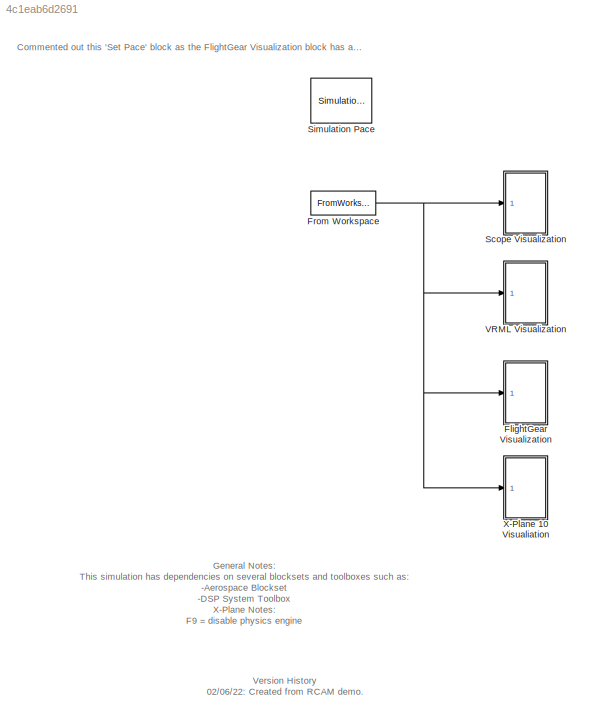
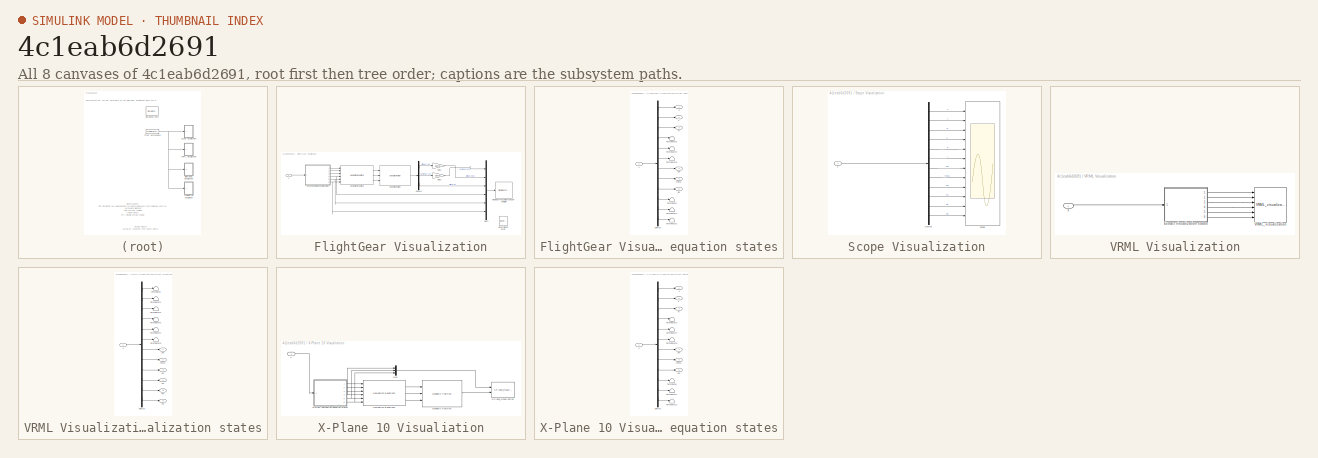
[diagram: thumbnail index - all 8 canvases of the model, root first then tree order]
MODEL slx_4c1eab6d2691
KIND model
CONFIG AbsTol = auto
CONFIG EnableMultiTasking = on
CONFIG FixedStep = auto
CONFIG MaxStep = auto
CONFIG MinStep = auto
CONFIG RelTol = 1e-3
CONFIG SampleTimeConstraint = Unconstrained
CONFIG SolverName = ode45
CONFIG StartTime = 0.0
CONFIG StopTime = simulation.t_final
BLOCK [SubSystem] FlightGear Visualization
  Ports = [1]
  RequestExecContextInheritance = off
BLOCK [Demux] FlightGear Visualization/Demux1
  Outputs = 3
  Ports = [1, 3]
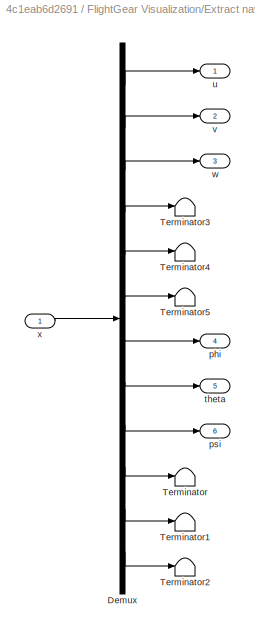
BLOCK [SubSystem] FlightGear Visualization/Extract navigation equation states
  Ports = [1, 6]
  RequestExecContextInheritance = off
BLOCK [Demux] FlightGear Visualization/Extract navigation equation states/Demux
  Outputs = 12
  Ports = [1, 12]
BLOCK [Terminator] FlightGear Visualization/Extract navigation equation states/Terminator
BLOCK [Terminator] FlightGear Visualization/Extract navigation equation states/Terminator1
BLOCK [Terminator] FlightGear Visualization/Extract navigation equation states/Terminator2
BLOCK [Terminator] FlightGear Visualization/Extract navigation equation states/Terminator3
BLOCK [Terminator] FlightGear Visualization/Extract navigation equation states/Terminator4
BLOCK [Terminator] FlightGear Visualization/Extract navigation equation states/Terminator5
BLOCK [Outport] FlightGear Visualization/Extract navigation equation states/phi
  Port = 4
  VectorParamsAs1DForOutWhenUnconnected = off
BLOCK [Outport] FlightGear Visualization/Extract navigation equation states/psi
  Port = 6
  VectorParamsAs1DForOutWhenUnconnected = off
BLOCK [Outport] FlightGear Visualization/Extract navigation equation states/theta
  Port = 5
  VectorParamsAs1DForOutWhenUnconnected = off
BLOCK [Outport] FlightGear Visualization/Extract navigation equation states/u
  VectorParamsAs1DForOutWhenUnconnected = off
BLOCK [Outport] FlightGear Visualization/Extract navigation equation states/v
  Port = 2
  VectorParamsAs1DForOutWhenUnconnected = off
BLOCK [Outport] FlightGear Visualization/Extract navigation equation states/w
  Port = 3
  VectorParamsAs1DForOutWhenUnconnected = off
BLOCK [Inport] FlightGear Visualization/Extract navigation equation states/x
BLOCK [Reference] FlightGear Visualization/FlightGear Preconfigured 6DoF Animation  REF=aerolibfltsims/FlightGear
Preconfigured
6DoF Animation
  AttributesFormatString = Version Selected: %<xFlightGearVersion>
  Ports = [1]
  SourceBlock = aerolibfltsims/FlightGear\nPreconfigured\n6DoF Animation
  SourceProductBaseCode = AE
  SourceType = FlightGearQuick6DoFAnimation
BLOCK [Gain] FlightGear Visualization/Gain1
  Gain = 180/pi
BLOCK [Gain] FlightGear Visualization/Gain2
  Gain = 180/pi
BLOCK [Reference] FlightGear Visualization/Generate Run Script  REF=aerolibfltsims/Generate
Run Script
  Ports = []
  SourceBlock = aerolibfltsims/Generate\nRun Script
  SourceProductBaseCode = AE
  SourceType = Generate FlightGear Run Script
BLOCK [Reference] FlightGear Visualization/Geodetic Position  REF=UWAerospaceBlockset_EquationsOfMotion/Geodetic Position
  Ports = [3, 1]
  SourceBlock = UWAerospaceBlockset_EquationsOfMotion/Geodetic Position
BLOCK [Mux] FlightGear Visualization/Mux3
  DisplayOption = bar
  Inputs = 6
  Ports = [6, 1]
BLOCK [Reference] FlightGear Visualization/Navigation Equations  REF=UWAerospaceBlockset_EquationsOfMotion/Navigation Equations
  Description = Version History  \n                 \n05/24/05: Created
  Ports = [6, 3]
  SourceBlock = UWAerospaceBlockset_EquationsOfMotion/Navigation Equations
BLOCK [Inport] FlightGear Visualization/x
BLOCK [FromWorkspace] From Workspace
  VariableName = simX_ts
BLOCK [SubSystem] Scope Visualization
  Ports = [1]
  RequestExecContextInheritance = off
BLOCK [Demux] Scope Visualization/Demux
  Outputs = 12
  Ports = [1, 12]
BLOCK [Scope] Scope Visualization/Scope
  Floating = off
  NumInputPorts = 12
  Ports = [12]
  ScopeSpecificationString = Simulink.scopes.TimeScopeBlockCfg('CurrentConfiguration', extmgr.ConfigurationSet(extmgr.Configuration('Core','General UI',true),extmgr.Configuration('Core','Source UI',true),extmgr.Configuration('Sources','WiredSimulink',true),extmgr.Configuration('Visuals','Time Domain',true,'SerializedDisplays',{struct('MinYLimReal','84.90233','MaxYLimReal','85.0491','YLabelReal','','MinYLimMag','84.90233','Max...<+8873ch>
BLOCK [Inport] Scope Visualization/x
BLOCK [Reference] Simulation Pace  REF=aerolibanimutils/Simulation Pace
  AttributesFormatString = %<SleepMode>\n%<SimulationPace> sec/sec
  Commented = on
  Ports = []
  SourceBlock = aerolibanimutils/Simulation Pace
  SourceProductBaseCode = AE
  SourceType = Simulation Pace
BLOCK [SubSystem] VRML Visualization
  Commented = on
  Ports = [1]
  RequestExecContextInheritance = off
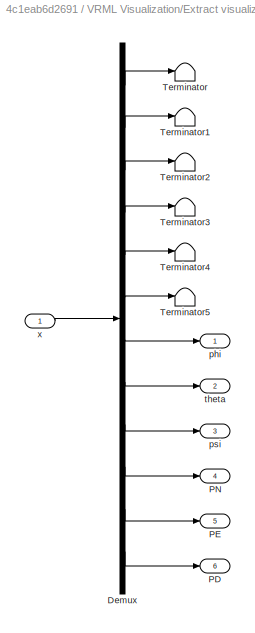
BLOCK [SubSystem] VRML Visualization/Extract visualization states
  Ports = [1, 6]
  RequestExecContextInheritance = off
BLOCK [Demux] VRML Visualization/Extract visualization states/Demux
  Outputs = 12
  Ports = [1, 12]
BLOCK [Outport] VRML Visualization/Extract visualization states/PD
  Port = 6
  VectorParamsAs1DForOutWhenUnconnected = off
BLOCK [Outport] VRML Visualization/Extract visualization states/PE
  Port = 5
  VectorParamsAs1DForOutWhenUnconnected = off
BLOCK [Outport] VRML Visualization/Extract visualization states/PN
  Port = 4
  VectorParamsAs1DForOutWhenUnconnected = off
BLOCK [Terminator] VRML Visualization/Extract visualization states/Terminator
BLOCK [Terminator] VRML Visualization/Extract visualization states/Terminator1
BLOCK [Terminator] VRML Visualization/Extract visualization states/Terminator2
BLOCK [Terminator] VRML Visualization/Extract visualization states/Terminator3
BLOCK [Terminator] VRML Visualization/Extract visualization states/Terminator4
BLOCK [Terminator] VRML Visualization/Extract visualization states/Terminator5
BLOCK [Outport] VRML Visualization/Extract visualization states/phi
  VectorParamsAs1DForOutWhenUnconnected = off
BLOCK [Outport] VRML Visualization/Extract visualization states/psi
  Port = 3
  VectorParamsAs1DForOutWhenUnconnected = off
BLOCK [Outport] VRML Visualization/Extract visualization states/theta
  Port = 2
  VectorParamsAs1DForOutWhenUnconnected = off
BLOCK [Inport] VRML Visualization/Extract visualization states/x
BLOCK [Reference] VRML Visualization/VRML_visualization  REF=UWAerospaceBlockset_Animation/VRML_visualization
  Ports = [6]
  SourceBlock = UWAerospaceBlockset_Animation/VRML_visualization
BLOCK [Inport] VRML Visualization/x
BLOCK [SubSystem] X-Plane 10 Visualiation
  Ports = [1]
  RequestExecContextInheritance = off
BLOCK [SubSystem] X-Plane 10 Visualiation/Extract navigation equation states
  Ports = [1, 6]
  RequestExecContextInheritance = off
BLOCK [Demux] X-Plane 10 Visualiation/Extract navigation equation states/Demux
  Outputs = 12
  Ports = [1, 12]
BLOCK [Terminator] X-Plane 10 Visualiation/Extract navigation equation states/Terminator
BLOCK [Terminator] X-Plane 10 Visualiation/Extract navigation equation states/Terminator1
BLOCK [Terminator] X-Plane 10 Visualiation/Extract navigation equation states/Terminator2
BLOCK [Terminator] X-Plane 10 Visualiation/Extract navigation equation states/Terminator3
BLOCK [Terminator] X-Plane 10 Visualiation/Extract navigation equation states/Terminator4
BLOCK [Terminator] X-Plane 10 Visualiation/Extract navigation equation states/Terminator5
BLOCK [Outport] X-Plane 10 Visualiation/Extract navigation equation states/phi
  Port = 4
  VectorParamsAs1DForOutWhenUnconnected = off
BLOCK [Outport] X-Plane 10 Visualiation/Extract navigation equation states/psi
  Port = 6
  VectorParamsAs1DForOutWhenUnconnected = off
BLOCK [Outport] X-Plane 10 Visualiation/Extract navigation equation states/theta
  Port = 5
  VectorParamsAs1DForOutWhenUnconnected = off
BLOCK [Outport] X-Plane 10 Visualiation/Extract navigation equation states/u
  VectorParamsAs1DForOutWhenUnconnected = off
BLOCK [Outport] X-Plane 10 Visualiation/Extract navigation equation states/v
  Port = 2
  VectorParamsAs1DForOutWhenUnconnected = off
BLOCK [Outport] X-Plane 10 Visualiation/Extract navigation equation states/w
  Port = 3
  VectorParamsAs1DForOutWhenUnconnected = off
BLOCK [Inport] X-Plane 10 Visualiation/Extract navigation equation states/x
BLOCK [Reference] X-Plane 10 Visualiation/Geodetic Position  REF=UWAerospaceBlockset_EquationsOfMotion/Geodetic Position
  Ports = [3, 1]
  SourceBlock = UWAerospaceBlockset_EquationsOfMotion/Geodetic Position
BLOCK [Mux] X-Plane 10 Visualiation/Mux
  DisplayOption = bar
  Inputs = 3
  Ports = [3, 1]
BLOCK [Reference] X-Plane 10 Visualiation/Navigation Equations  REF=UWAerospaceBlockset_EquationsOfMotion/Navigation Equations
  Description = Version History  \n                 \n05/24/05: Created
  Ports = [6, 3]
  SourceBlock = UWAerospaceBlockset_EquationsOfMotion/Navigation Equations
BLOCK [Reference] X-Plane 10 Visualiation/XPlane_visualization  REF=UWAerospaceBlockset_Animation/XPlane_visualization
  Ports = [2]
  SourceBlock = UWAerospaceBlockset_Animation/XPlane_visualization
BLOCK [Inport] X-Plane 10 Visualiation/x
ANNOTATION (root): General Notes: This simulation has dependencies on several blocksets and toolboxes such as: -Aerospace Blockset -DSP System Toolbox X-Plane Notes: F9 = disable physics engine F5 = start listening for UDP packets
ANNOTATION (root): Commented out this 'Set Pace' block as the FlightGear Visualization block has a Set Pace block under the mask
ANNOTATION (root): Version History 02/06/22: Created from RCAM demo.
LINE FlightGear Visualization/Demux1:1 -> FlightGear Visualization/Gain1:1
LINE FlightGear Visualization/Demux1:2 -> FlightGear Visualization/Gain2:1
LINE FlightGear Visualization/Demux1:3 -> FlightGear Visualization/Mux3:3
LINE FlightGear Visualization/Extract navigation equation states/Demux:1 -> FlightGear Visualization/Extract navigation equation states/u:1
LINE FlightGear Visualization/Extract navigation equation states/Demux:10 -> FlightGear Visualization/Extract navigation equation states/Terminator:1
LINE FlightGear Visualization/Extract navigation equation states/Demux:11 -> FlightGear Visualization/Extract navigation equation states/Terminator1:1
LINE FlightGear Visualization/Extract navigation equation states/Demux:12 -> FlightGear Visualization/Extract navigation equation states/Terminator2:1
LINE FlightGear Visualization/Extract navigation equation states/Demux:2 -> FlightGear Visualization/Extract navigation equation states/v:1
LINE FlightGear Visualization/Extract navigation equation states/Demux:3 -> FlightGear Visualization/Extract navigation equation states/w:1
LINE FlightGear Visualization/Extract navigation equation states/Demux:4 -> FlightGear Visualization/Extract navigation equation states/Terminator3:1
LINE FlightGear Visualization/Extract navigation equation states/Demux:5 -> FlightGear Visualization/Extract navigation equation states/Terminator4:1
LINE FlightGear Visualization/Extract navigation equation states/Demux:6 -> FlightGear Visualization/Extract navigation equation states/Terminator5:1
LINE FlightGear Visualization/Extract navigation equation states/Demux:7 -> FlightGear Visualization/Extract navigation equation states/phi:1
LINE FlightGear Visualization/Extract navigation equation states/Demux:8 -> FlightGear Visualization/Extract navigation equation states/theta:1
LINE FlightGear Visualization/Extract navigation equation states/Demux:9 -> FlightGear Visualization/Extract navigation equation states/psi:1
LINE FlightGear Visualization/Extract navigation equation states/x:1 -> FlightGear Visualization/Extract navigation equation states/Demux:1
LINE FlightGear Visualization/Extract navigation equation states:1 -> FlightGear Visualization/Navigation Equations:1
LINE FlightGear Visualization/Extract navigation equation states:2 -> FlightGear Visualization/Navigation Equations:2
LINE FlightGear Visualization/Extract navigation equation states:3 -> FlightGear Visualization/Navigation Equations:3
NET FlightGear Visualization/Extract navigation equation states:4 -> FlightGear Visualization/Mux3:4, FlightGear Visualization/Navigation Equations:4
NET FlightGear Visualization/Extract navigation equation states:5 -> FlightGear Visualization/Mux3:5, FlightGear Visualization/Navigation Equations:5
NET FlightGear Visualization/Extract navigation equation states:6 -> FlightGear Visualization/Mux3:6, FlightGear Visualization/Navigation Equations:6
LINE FlightGear Visualization/Gain1:1 -> FlightGear Visualization/Mux3:2
LINE FlightGear Visualization/Gain2:1 -> FlightGear Visualization/Mux3:1
LINE FlightGear Visualization/Geodetic Position:1 -> FlightGear Visualization/Demux1:1
LINE FlightGear Visualization/Mux3:1 -> FlightGear Visualization/FlightGear Preconfigured 6DoF Animation:1
LINE FlightGear Visualization/Navigation Equations:1 -> FlightGear Visualization/Geodetic Position:1
LINE FlightGear Visualization/Navigation Equations:2 -> FlightGear Visualization/Geodetic Position:2
LINE FlightGear Visualization/Navigation Equations:3 -> FlightGear Visualization/Geodetic Position:3
LINE FlightGear Visualization/x:1 -> FlightGear Visualization/Extract navigation equation states:1
NET From Workspace:1 -> FlightGear Visualization:1, Scope Visualization:1, VRML Visualization:1, X-Plane 10 Visualiation:1
LINE Scope Visualization/Demux:1 -> Scope Visualization/Scope:1
LINE Scope Visualization/Demux:10 -> Scope Visualization/Scope:10
LINE Scope Visualization/Demux:11 -> Scope Visualization/Scope:11
LINE Scope Visualization/Demux:12 -> Scope Visualization/Scope:12
LINE Scope Visualization/Demux:2 -> Scope Visualization/Scope:2
LINE Scope Visualization/Demux:3 -> Scope Visualization/Scope:3
LINE Scope Visualization/Demux:4 -> Scope Visualization/Scope:4
LINE Scope Visualization/Demux:5 -> Scope Visualization/Scope:5
LINE Scope Visualization/Demux:6 -> Scope Visualization/Scope:6
LINE Scope Visualization/Demux:7 -> Scope Visualization/Scope:7
LINE Scope Visualization/Demux:8 -> Scope Visualization/Scope:8
LINE Scope Visualization/Demux:9 -> Scope Visualization/Scope:9
LINE Scope Visualization/x:1 -> Scope Visualization/Demux:1
LINE VRML Visualization/Extract visualization states/Demux:1 -> VRML Visualization/Extract visualization states/Terminator:1
LINE VRML Visualization/Extract visualization states/Demux:10 -> VRML Visualization/Extract visualization states/PN:1
LINE VRML Visualization/Extract visualization states/Demux:11 -> VRML Visualization/Extract visualization states/PE:1
LINE VRML Visualization/Extract visualization states/Demux:12 -> VRML Visualization/Extract visualization states/PD:1
LINE VRML Visualization/Extract visualization states/Demux:2 -> VRML Visualization/Extract visualization states/Terminator1:1
LINE VRML Visualization/Extract visualization states/Demux:3 -> VRML Visualization/Extract visualization states/Terminator2:1
LINE VRML Visualization/Extract visualization states/Demux:4 -> VRML Visualization/Extract visualization states/Terminator3:1
LINE VRML Visualization/Extract visualization states/Demux:5 -> VRML Visualization/Extract visualization states/Terminator4:1
LINE VRML Visualization/Extract visualization states/Demux:6 -> VRML Visualization/Extract visualization states/Terminator5:1
LINE VRML Visualization/Extract visualization states/Demux:7 -> VRML Visualization/Extract visualization states/phi:1
LINE VRML Visualization/Extract visualization states/Demux:8 -> VRML Visualization/Extract visualization states/theta:1
LINE VRML Visualization/Extract visualization states/Demux:9 -> VRML Visualization/Extract visualization states/psi:1
LINE VRML Visualization/Extract visualization states/x:1 -> VRML Visualization/Extract visualization states/Demux:1
LINE VRML Visualization/Extract visualization states:1 -> VRML Visualization/VRML_visualization:1
LINE VRML Visualization/Extract visualization states:2 -> VRML Visualization/VRML_visualization:2
LINE VRML Visualization/Extract visualization states:3 -> VRML Visualization/VRML_visualization:3
LINE VRML Visualization/Extract visualization states:4 -> VRML Visualization/VRML_visualization:4
LINE VRML Visualization/Extract visualization states:5 -> VRML Visualization/VRML_visualization:5
LINE VRML Visualization/Extract visualization states:6 -> VRML Visualization/VRML_visualization:6
LINE VRML Visualization/x:1 -> VRML Visualization/Extract visualization states:1
LINE X-Plane 10 Visualiation/Extract navigation equation states/Demux:1 -> X-Plane 10 Visualiation/Extract navigation equation states/u:1
LINE X-Plane 10 Visualiation/Extract navigation equation states/Demux:10 -> X-Plane 10 Visualiation/Extract navigation equation states/Terminator:1
LINE X-Plane 10 Visualiation/Extract navigation equation states/Demux:11 -> X-Plane 10 Visualiation/Extract navigation equation states/Terminator1:1
LINE X-Plane 10 Visualiation/Extract navigation equation states/Demux:12 -> X-Plane 10 Visualiation/Extract navigation equation states/Terminator2:1
LINE X-Plane 10 Visualiation/Extract navigation equation states/Demux:2 -> X-Plane 10 Visualiation/Extract navigation equation states/v:1
LINE X-Plane 10 Visualiation/Extract navigation equation states/Demux:3 -> X-Plane 10 Visualiation/Extract navigation equation states/w:1
LINE X-Plane 10 Visualiation/Extract navigation equation states/Demux:4 -> X-Plane 10 Visualiation/Extract navigation equation states/Terminator3:1
LINE X-Plane 10 Visualiation/Extract navigation equation states/Demux:5 -> X-Plane 10 Visualiation/Extract navigation equation states/Terminator4:1
LINE X-Plane 10 Visualiation/Extract navigation equation states/Demux:6 -> X-Plane 10 Visualiation/Extract navigation equation states/Terminator5:1
LINE X-Plane 10 Visualiation/Extract navigation equation states/Demux:7 -> X-Plane 10 Visualiation/Extract navigation equation states/phi:1
LINE X-Plane 10 Visualiation/Extract navigation equation states/Demux:8 -> X-Plane 10 Visualiation/Extract navigation equation states/theta:1
LINE X-Plane 10 Visualiation/Extract navigation equation states/Demux:9 -> X-Plane 10 Visualiation/Extract navigation equation states/psi:1
LINE X-Plane 10 Visualiation/Extract navigation equation states/x:1 -> X-Plane 10 Visualiation/Extract navigation equation states/Demux:1
LINE X-Plane 10 Visualiation/Extract navigation equation states:1 -> X-Plane 10 Visualiation/Navigation Equations:1
LINE X-Plane 10 Visualiation/Extract navigation equation states:2 -> X-Plane 10 Visualiation/Navigation Equations:2
LINE X-Plane 10 Visualiation/Extract navigation equation states:3 -> X-Plane 10 Visualiation/Navigation Equations:3
NET X-Plane 10 Visualiation/Extract navigation equation states:4 -> X-Plane 10 Visualiation/Mux:1, X-Plane 10 Visualiation/Navigation Equations:4
NET X-Plane 10 Visualiation/Extract navigation equation states:5 -> X-Plane 10 Visualiation/Mux:2, X-Plane 10 Visualiation/Navigation Equations:5
NET X-Plane 10 Visualiation/Extract navigation equation states:6 -> X-Plane 10 Visualiation/Mux:3, X-Plane 10 Visualiation/Navigation Equations:6
LINE X-Plane 10 Visualiation/Geodetic Position:1 -> X-Plane 10 Visualiation/XPlane_visualization:2
LINE X-Plane 10 Visualiation/Mux:1 -> X-Plane 10 Visualiation/XPlane_visualization:1
LINE X-Plane 10 Visualiation/Navigation Equations:1 -> X-Plane 10 Visualiation/Geodetic Position:1
LINE X-Plane 10 Visualiation/Navigation Equations:2 -> X-Plane 10 Visualiation/Geodetic Position:2
LINE X-Plane 10 Visualiation/Navigation Equations:3 -> X-Plane 10 Visualiation/Geodetic Position:3
LINE X-Plane 10 Visualiation/x:1 -> X-Plane 10 Visualiation/Extract navigation equation states:1
note: NET lines group one-source signal fan-out (src -> all destinations, sorted); 1:1 wires keep LINE
